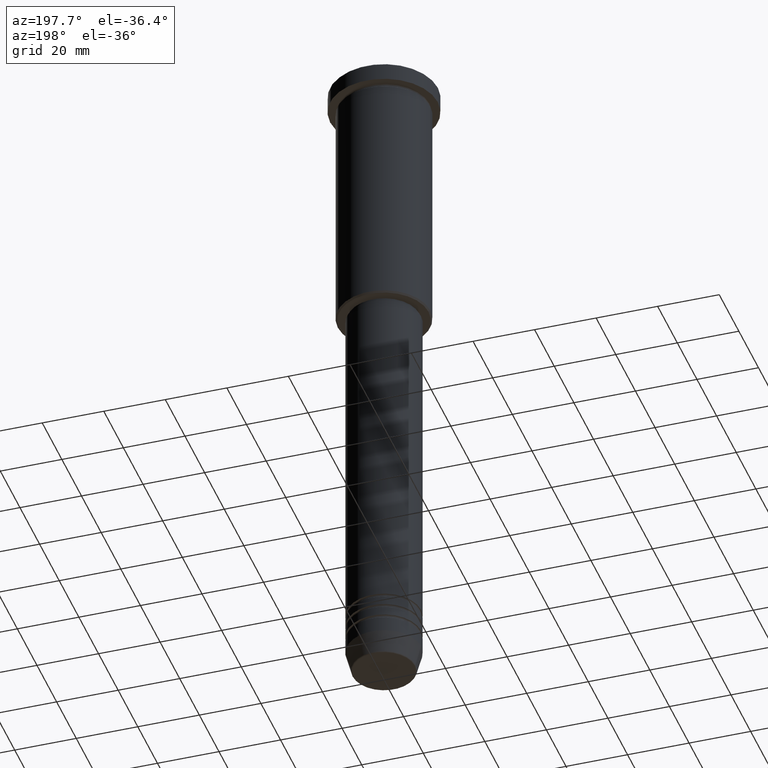
[diagram: clean part render]
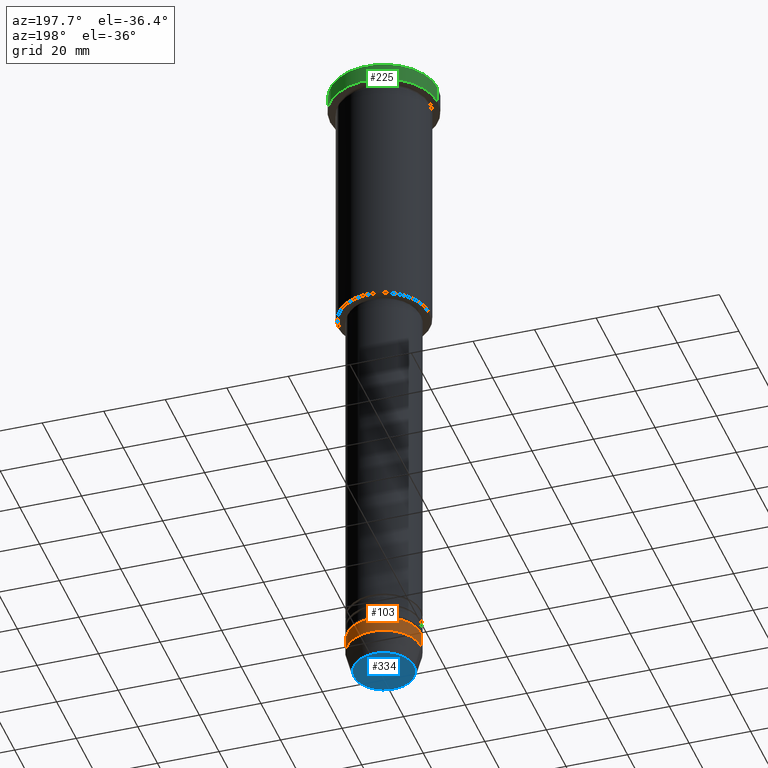
[diagram: same view with three faces highlighted in distinct colors, each labeled with its STEP entity id]
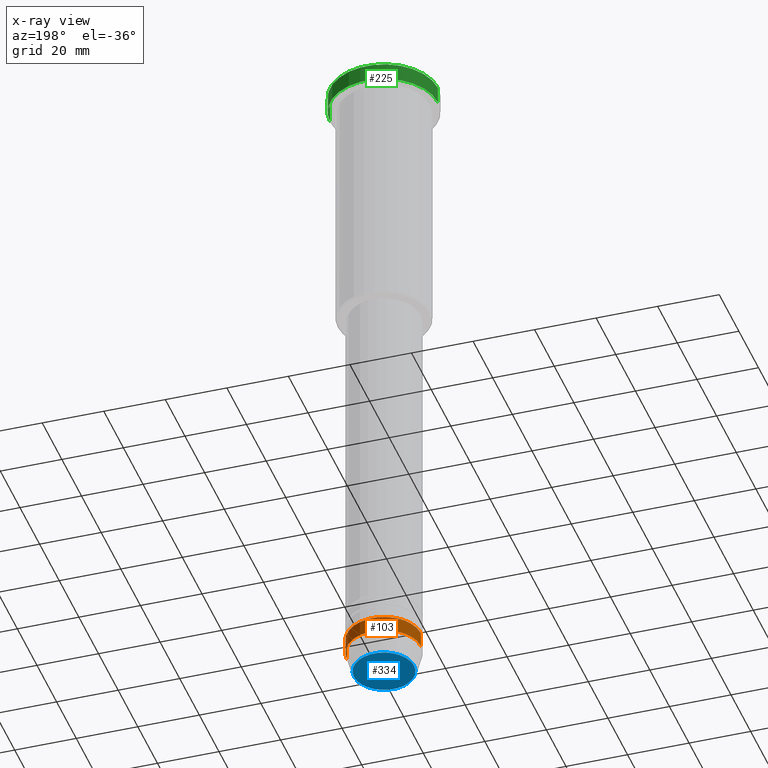
[diagram: x-ray of the same camera — body ghosted, the three highlighted faces saturated]
A machine part, auxiliary view with three faces highlighted in distinct colors.
The next image is the same camera in x-ray (body ghosted, the three faces saturated) — at least one of them is partly hidden behind the body in this view.
Their STEP definitions:

[orange] entity #103 — the highlighted cylindrical surface (partial cylindrical patch) has radius 12 mm, axis along (-0, -0, 1).
#38 = CARTESIAN_POINT ( 'NONE',  ( 0.000000000000000000, 0.000000000000000000, -209.0000000000000568 ) ) ;
#42 = CIRCLE ( 'NONE', #155, 12.00000000000000000 ) ;
#53 = CARTESIAN_POINT ( 'NONE',  ( 0.000000000000000000, 0.000000000000000000, 0.000000000000000000 ) ) ;
#58 = DIRECTION ( 'NONE',  ( -0.000000000000000000, -0.000000000000000000, 1.000000000000000000 ) ) ;
#103 = ADVANCED_FACE ( 'NONE', ( #1050 ), #682, .T. ) ;
#107 = EDGE_LOOP ( 'NONE', ( #1001, #278, #804, #431 ) ) ;
#155 = AXIS2_PLACEMENT_3D ( 'NONE', #1135, #1138, #332 ) ;
#160 = EDGE_CURVE ( 'NONE', #961, #826, #588, .T. ) ;
#189 = CARTESIAN_POINT ( 'NONE',  ( -12.00000000000000000, 1.469576158976823947E-15, -209.0000000000000568 ) ) ;
#201 = LINE ( 'NONE', #288, #270 ) ;
#211 = VECTOR ( 'NONE', #797, 1000.000000000000000 ) ;
#216 = EDGE_CURVE ( 'NONE', #855, #961, #42, .T. ) ;
#226 = CARTESIAN_POINT ( 'NONE',  ( -12.00000000000000000, 1.469576158976823947E-15, -214.0000000000000284 ) ) ;
#266 = VERTEX_POINT ( 'NONE', #915 ) ;
#270 = VECTOR ( 'NONE', #657, 1000.000000000000000 ) ;
#278 = ORIENTED_EDGE ( 'NONE', *, *, #160, .T. ) ;
#288 = CARTESIAN_POINT ( 'NONE',  ( 12.00000000000000000, 0.000000000000000000, 0.000000000000000000 ) ) ;
#321 = DIRECTION ( 'NONE',  ( 1.000000000000000000, 0.000000000000000000, 0.000000000000000000 ) ) ;
#332 = DIRECTION ( 'NONE',  ( 1.000000000000000000, 0.000000000000000000, 0.000000000000000000 ) ) ;
#365 = AXIS2_PLACEMENT_3D ( 'NONE', #53, #58, #321 ) ;
#399 = EDGE_CURVE ( 'NONE', #855, #266, #201, .T. ) ;
#400 = DIRECTION ( 'NONE',  ( 1.000000000000000000, 0.000000000000000000, 0.000000000000000000 ) ) ;
#431 = ORIENTED_EDGE ( 'NONE', *, *, #399, .F. ) ;
#588 = LINE ( 'NONE', #774, #211 ) ;
#644 = CARTESIAN_POINT ( 'NONE',  ( 12.00000000000000000, 0.000000000000000000, -214.0000000000000284 ) ) ;
#657 = DIRECTION ( 'NONE',  ( -0.000000000000000000, -0.000000000000000000, 1.000000000000000000 ) ) ;
#682 = CYLINDRICAL_SURFACE ( 'NONE', #365, 12.00000000000000000 ) ;
#774 = CARTESIAN_POINT ( 'NONE',  ( -12.00000000000000000, 1.469576158976823947E-15, 0.000000000000000000 ) ) ;
#781 = DIRECTION ( 'NONE',  ( -0.000000000000000000, -0.000000000000000000, 1.000000000000000000 ) ) ;
#797 = DIRECTION ( 'NONE',  ( -0.000000000000000000, -0.000000000000000000, 1.000000000000000000 ) ) ;
#804 = ORIENTED_EDGE ( 'NONE', *, *, #1051, .F. ) ;
#826 = VERTEX_POINT ( 'NONE', #189 ) ;
#855 = VERTEX_POINT ( 'NONE', #644 ) ;
#872 = AXIS2_PLACEMENT_3D ( 'NONE', #38, #781, #400 ) ;
#915 = CARTESIAN_POINT ( 'NONE',  ( 12.00000000000000000, 0.000000000000000000, -209.0000000000000568 ) ) ;
#961 = VERTEX_POINT ( 'NONE', #226 ) ;
#1001 = ORIENTED_EDGE ( 'NONE', *, *, #216, .T. ) ;
#1043 = CIRCLE ( 'NONE', #872, 12.00000000000000000 ) ;
#1050 = FACE_OUTER_BOUND ( 'NONE', #107, .T. ) ;
#1051 = EDGE_CURVE ( 'NONE', #266, #826, #1043, .T. ) ;
#1135 = CARTESIAN_POINT ( 'NONE',  ( 0.000000000000000000, 0.000000000000000000, -214.0000000000000284 ) ) ;
#1138 = DIRECTION ( 'NONE',  ( -0.000000000000000000, -0.000000000000000000, 1.000000000000000000 ) ) ;

[blue] entity #334 — the highlighted planar face has unit normal (0, -0, 1).
#6 = AXIS2_PLACEMENT_3D ( 'NONE', #787, #868, #324 ) ;
#73 = ORIENTED_EDGE ( 'NONE', *, *, #607, .T. ) ;
#78 = EDGE_LOOP ( 'NONE', ( #241, #73 ) ) ;
#83 = CIRCLE ( 'NONE', #676, 9.740692158992658278 ) ;
#100 = CIRCLE ( 'NONE', #6, 9.740692158992658278 ) ;
#177 = VERTEX_POINT ( 'NONE', #977 ) ;
#232 = CARTESIAN_POINT ( 'NONE',  ( 9.740692158992658278, 0.000000000000000000, -221.0000000000000284 ) ) ;
#241 = ORIENTED_EDGE ( 'NONE', *, *, #526, .T. ) ;
#265 = DIRECTION ( 'NONE',  ( 1.000000000000000000, 0.000000000000000000, 0.000000000000000000 ) ) ;
#318 = DIRECTION ( 'NONE',  ( 1.000000000000000000, 0.000000000000000000, 0.000000000000000000 ) ) ;
#324 = DIRECTION ( 'NONE',  ( 1.000000000000000000, 0.000000000000000000, 0.000000000000000000 ) ) ;
#334 = ADVANCED_FACE ( 'NONE', ( #919 ), #337, .F. ) ;
#337 = PLANE ( 'NONE',  #577 ) ;
#421 = DIRECTION ( 'NONE',  ( 0.000000000000000000, 0.000000000000000000, -1.000000000000000000 ) ) ;
#526 = EDGE_CURVE ( 'NONE', #1026, #177, #100, .T. ) ;
#577 = AXIS2_PLACEMENT_3D ( 'NONE', #703, #1073, #265 ) ;
#604 = CARTESIAN_POINT ( 'NONE',  ( 0.000000000000000000, 0.000000000000000000, -221.0000000000000284 ) ) ;
#607 = EDGE_CURVE ( 'NONE', #177, #1026, #83, .T. ) ;
#676 = AXIS2_PLACEMENT_3D ( 'NONE', #604, #421, #318 ) ;
#703 = CARTESIAN_POINT ( 'NONE',  ( 0.000000000000000000, 0.000000000000000000, -221.0000000000000284 ) ) ;
#787 = CARTESIAN_POINT ( 'NONE',  ( 0.000000000000000000, 0.000000000000000000, -221.0000000000000284 ) ) ;
#868 = DIRECTION ( 'NONE',  ( 0.000000000000000000, 0.000000000000000000, -1.000000000000000000 ) ) ;
#919 = FACE_OUTER_BOUND ( 'NONE', #78, .T. ) ;
#977 = CARTESIAN_POINT ( 'NONE',  ( -9.740692158992658278, 1.222463696683474999E-15, -221.0000000000000284 ) ) ;
#1026 = VERTEX_POINT ( 'NONE', #232 ) ;
#1073 = DIRECTION ( 'NONE',  ( 0.000000000000000000, -0.000000000000000000, 1.000000000000000000 ) ) ;

[green] entity #225 — the highlighted cylindrical surface (partial cylindrical patch) has radius 17.5 mm, axis along (-0, -0, 1).
#4 = VECTOR ( 'NONE', #235, 1000.000000000000000 ) ;
#22 = CARTESIAN_POINT ( 'NONE',  ( 0.000000000000000000, 0.000000000000000000, -5.999999999999995559 ) ) ;
#44 = AXIS2_PLACEMENT_3D ( 'NONE', #221, #132, #451 ) ;
#54 = VERTEX_POINT ( 'NONE', #99 ) ;
#99 = CARTESIAN_POINT ( 'NONE',  ( -17.50000000000000000, 2.143131898507868248E-15, -0.5000000000000280886 ) ) ;
#112 = DIRECTION ( 'NONE',  ( -0.000000000000000000, -0.000000000000000000, 1.000000000000000000 ) ) ;
#132 = DIRECTION ( 'NONE',  ( 0.000000000000000000, 0.000000000000000000, -1.000000000000000000 ) ) ;
#141 = DIRECTION ( 'NONE',  ( -0.000000000000000000, -0.000000000000000000, 1.000000000000000000 ) ) ;
#187 = EDGE_CURVE ( 'NONE', #207, #905, #405, .T. ) ;
#207 = VERTEX_POINT ( 'NONE', #510 ) ;
#218 = CARTESIAN_POINT ( 'NONE',  ( 17.50000000000000000, 0.000000000000000000, 0.000000000000000000 ) ) ;
#221 = CARTESIAN_POINT ( 'NONE',  ( 0.000000000000000000, 0.000000000000000000, -0.5000000000000280886 ) ) ;
#225 = ADVANCED_FACE ( 'NONE', ( #1055 ), #598, .T. ) ;
#235 = DIRECTION ( 'NONE',  ( -0.000000000000000000, -0.000000000000000000, 1.000000000000000000 ) ) ;
#245 = ORIENTED_EDGE ( 'NONE', *, *, #643, .T. ) ;
#310 = ORIENTED_EDGE ( 'NONE', *, *, #187, .F. ) ;
#405 = LINE ( 'NONE', #218, #4 ) ;
#419 = EDGE_LOOP ( 'NONE', ( #920, #776, #245, #310 ) ) ;
#438 = EDGE_CURVE ( 'NONE', #207, #860, #477, .T. ) ;
#451 = DIRECTION ( 'NONE',  ( 1.000000000000000000, 0.000000000000000000, 0.000000000000000000 ) ) ;
#477 = CIRCLE ( 'NONE', #694, 17.50000000000000000 ) ;
#510 = CARTESIAN_POINT ( 'NONE',  ( 17.50000000000000000, 0.000000000000000000, -5.999999999999995559 ) ) ;
#516 = DIRECTION ( 'NONE',  ( 1.000000000000000000, 0.000000000000000000, 0.000000000000000000 ) ) ;
#561 = VECTOR ( 'NONE', #1065, 1000.000000000000000 ) ;
#598 = CYLINDRICAL_SURFACE ( 'NONE', #828, 17.50000000000000000 ) ;
#616 = EDGE_CURVE ( 'NONE', #860, #54, #952, .T. ) ;
#643 = EDGE_CURVE ( 'NONE', #54, #905, #1131, .T. ) ;
#694 = AXIS2_PLACEMENT_3D ( 'NONE', #22, #112, #1108 ) ;
#697 = CARTESIAN_POINT ( 'NONE',  ( 0.000000000000000000, 0.000000000000000000, 0.000000000000000000 ) ) ;
#776 = ORIENTED_EDGE ( 'NONE', *, *, #616, .T. ) ;
#828 = AXIS2_PLACEMENT_3D ( 'NONE', #697, #141, #516 ) ;
#860 = VERTEX_POINT ( 'NONE', #940 ) ;
#905 = VERTEX_POINT ( 'NONE', #1007 ) ;
#920 = ORIENTED_EDGE ( 'NONE', *, *, #438, .T. ) ;
#940 = CARTESIAN_POINT ( 'NONE',  ( -17.50000000000000000, 2.143131898507868248E-15, -5.999999999999995559 ) ) ;
#952 = LINE ( 'NONE', #1125, #561 ) ;
#1007 = CARTESIAN_POINT ( 'NONE',  ( 17.50000000000000000, 0.000000000000000000, -0.5000000000000280886 ) ) ;
#1055 = FACE_OUTER_BOUND ( 'NONE', #419, .T. ) ;
#1065 = DIRECTION ( 'NONE',  ( -0.000000000000000000, -0.000000000000000000, 1.000000000000000000 ) ) ;
#1108 = DIRECTION ( 'NONE',  ( 1.000000000000000000, 0.000000000000000000, 0.000000000000000000 ) ) ;
#1125 = CARTESIAN_POINT ( 'NONE',  ( -17.50000000000000000, 2.143131898507868248E-15, 0.000000000000000000 ) ) ;
#1131 = CIRCLE ( 'NONE', #44, 17.50000000000000000 ) ;